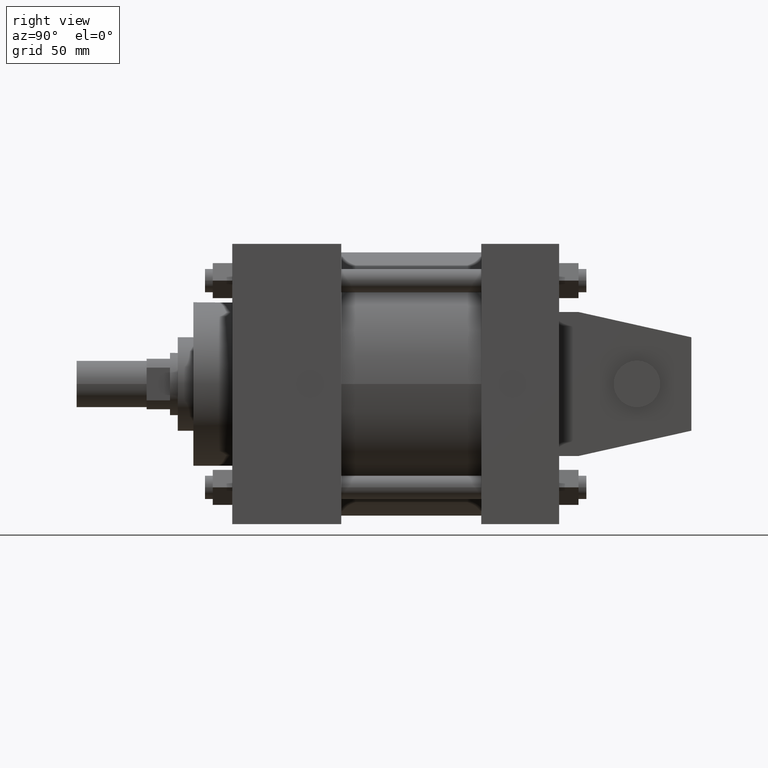
[diagram: clean part render]
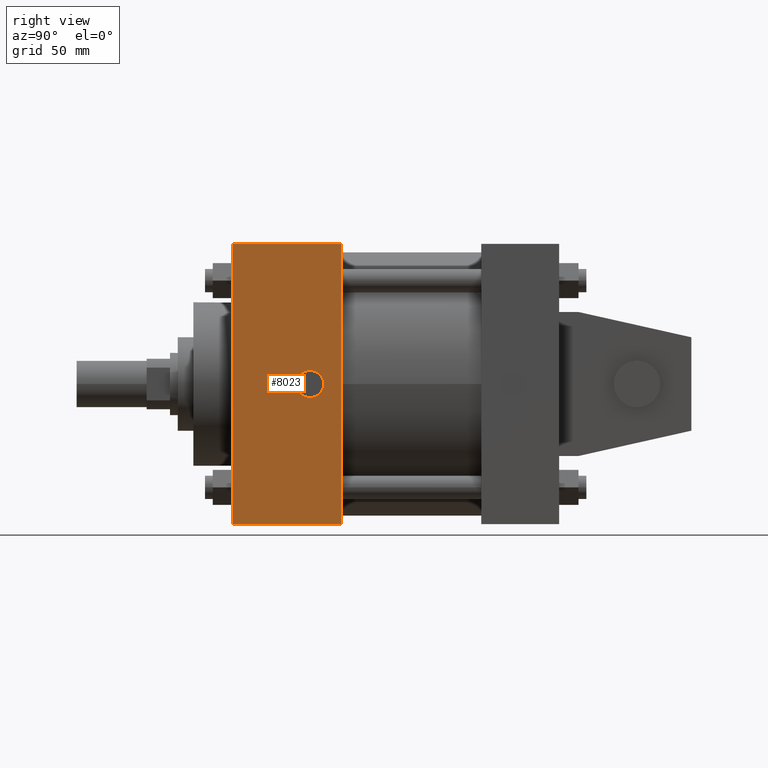
[diagram: same view with one face highlighted and labeled with its STEP entity id]
A machine part, right view. The second image highlights one B-rep face of the part: STEP entity #8023.
In plain terms, the highlighted planar face has unit normal (1, 0, 0).
Its self-contained STEP definition (entity closure, byte-faithful):
#521=VERTEX_POINT('',#523);
#523=CARTESIAN_POINT('',(5.715000000E+001,7.937500000E+001,-5.715000000E+001));
#536=VERTEX_POINT('',#537);
#537=CARTESIAN_POINT('',(5.715000000E+001,7.937500000E+001,5.715000000E+001));
#538=EDGE_CURVE('',#521,#536,#539,.T.);
#539=LINE('',#540,#541);
#540=CARTESIAN_POINT('',(5.715000000E+001,7.937500000E+001,-5.715000000E+001));
#541=VECTOR('',#542,1.0E+000);
#542=DIRECTION('',(0.0E+000,0.0E+000,1.0E+000));
#592=EDGE_CURVE('',#521,#597,#593,.T.);
#593=LINE('',#594,#595);
#594=CARTESIAN_POINT('',(5.715000000E+001,7.937500000E+001,-5.715000000E+001));
#595=VECTOR('',#596,1.0E+000);
#596=DIRECTION('',(0.0E+000,-1.0E+000,0.0E+000));
#597=VERTEX_POINT('',#598);
#598=CARTESIAN_POINT('',(5.715000000E+001,3.492500000E+001,-5.715000000E+001));
#645=VERTEX_POINT('',#646);
#646=CARTESIAN_POINT('',(5.715000000E+001,3.492500000E+001,5.715000000E+001));
#647=EDGE_CURVE('',#536,#645,#648,.T.);
#648=LINE('',#649,#650);
#649=CARTESIAN_POINT('',(5.715000000E+001,7.937500000E+001,5.715000000E+001));
#650=VECTOR('',#651,1.0E+000);
#651=DIRECTION('',(0.0E+000,-1.0E+000,0.0E+000));
#693=FACE_OUTER_BOUND('',#695,.T.);
#694=FACE_BOUND('',#696,.T.);
#695=EDGE_LOOP('',(#697,#698,#699,#700));
#696=EDGE_LOOP('',(#706));
#697=ORIENTED_EDGE('',*,*,#647,.T.);
#698=ORIENTED_EDGE('',*,*,#701,.F.);
#699=ORIENTED_EDGE('',*,*,#592,.F.);
#700=ORIENTED_EDGE('',*,*,#538,.T.);
#701=EDGE_CURVE('',#597,#645,#702,.T.);
#702=LINE('',#703,#704);
#703=CARTESIAN_POINT('',(5.715000000E+001,3.492500000E+001,-5.715000000E+001));
#704=VECTOR('',#705,1.0E+000);
#705=DIRECTION('',(0.0E+000,0.0E+000,1.0E+000));
#706=ORIENTED_EDGE('',*,*,#707,.T.);
#707=EDGE_CURVE('',#713,#713,#708,.T.);
#708=CIRCLE('',#709,5.556250000E+000);
#709=AXIS2_PLACEMENT_3D('',#710,#711,#712);
#710=CARTESIAN_POINT('',(5.715000000E+001,6.667500000E+001,0.000000000E+000));
#711=DIRECTION('',(-1.0E+000,0.0E+000,0.0E+000));
#712=DIRECTION('',(0.0E+000,1.0E+000,0.0E+000));
#713=VERTEX_POINT('',#714);
#714=CARTESIAN_POINT('',(5.715000000E+001,7.223125000E+001,0.000000000E+000));
#715=PLANE('',#716);
#716=AXIS2_PLACEMENT_3D('',#717,#718,#719);
#717=CARTESIAN_POINT('',(5.715000000E+001,7.937500000E+001,-5.715000000E+001));
#718=DIRECTION('',(1.0E+000,0.0E+000,0.0E+000));
#719=DIRECTION('',(0.0E+000,0.0E+000,-1.0E+000));
#8023=ADVANCED_FACE('',(#693,#694),#715,.T.);